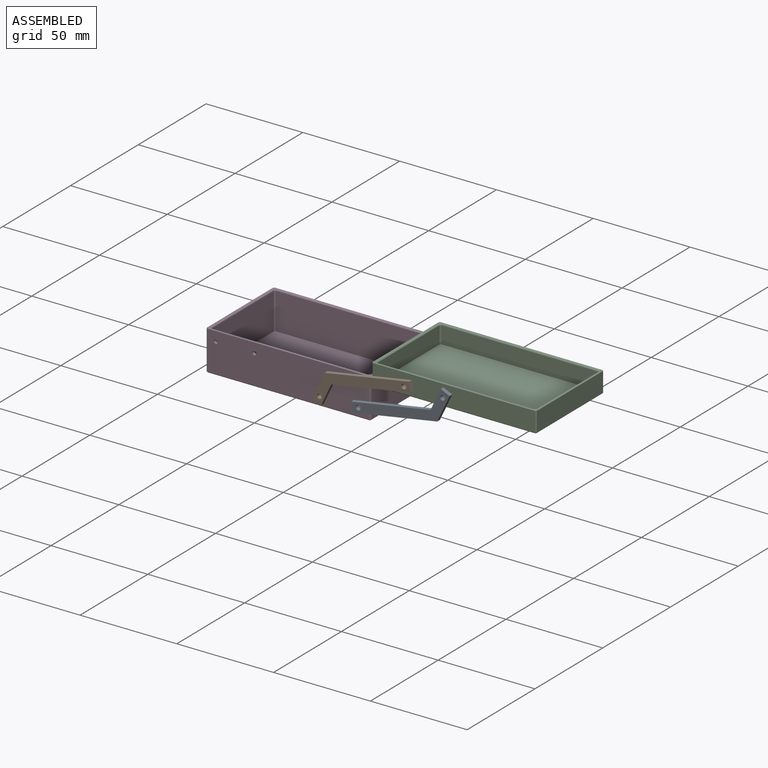
[diagram: assembled view]
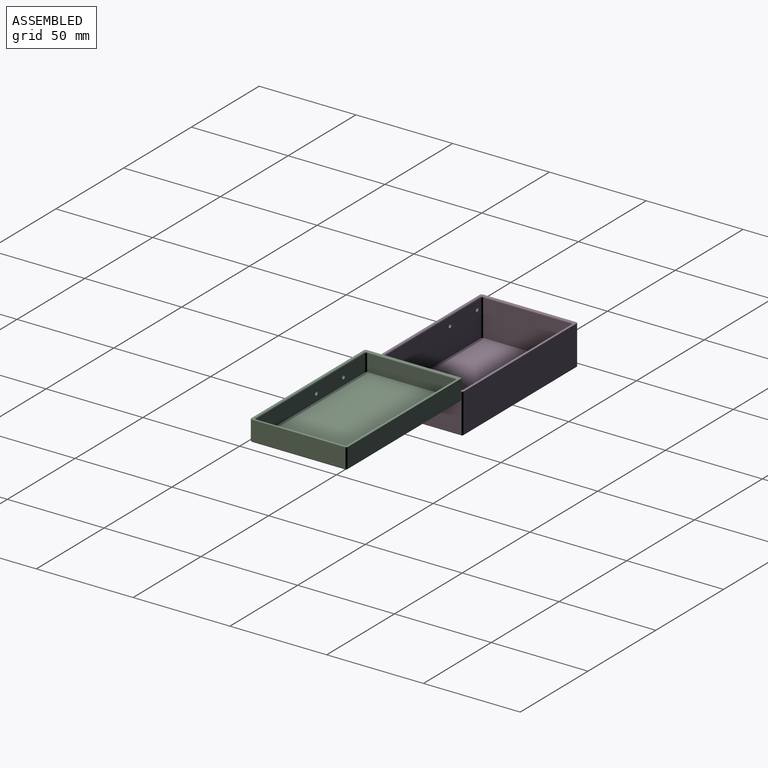
[diagram: assembled view, second angle]
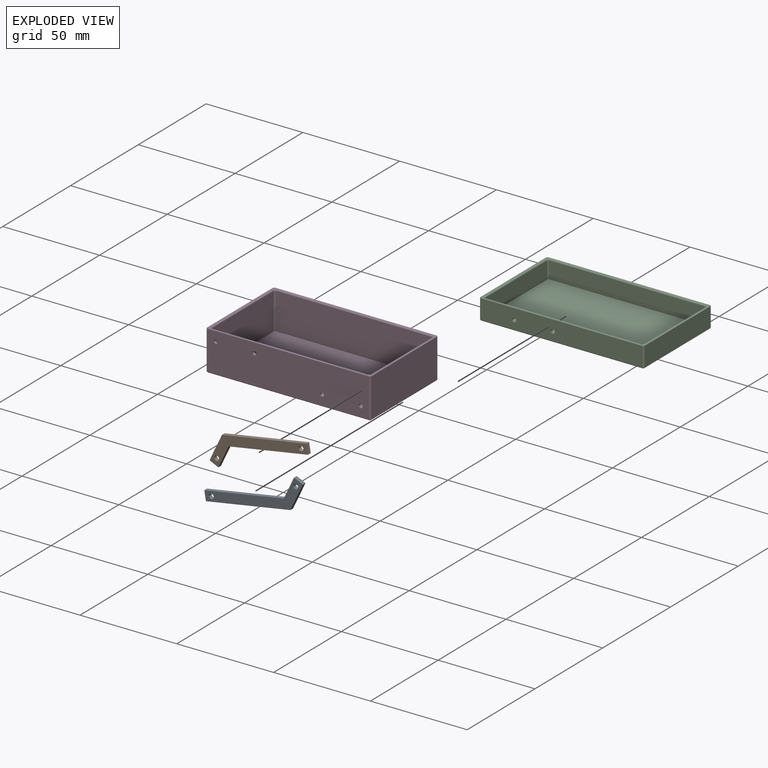
[diagram: exploded view]
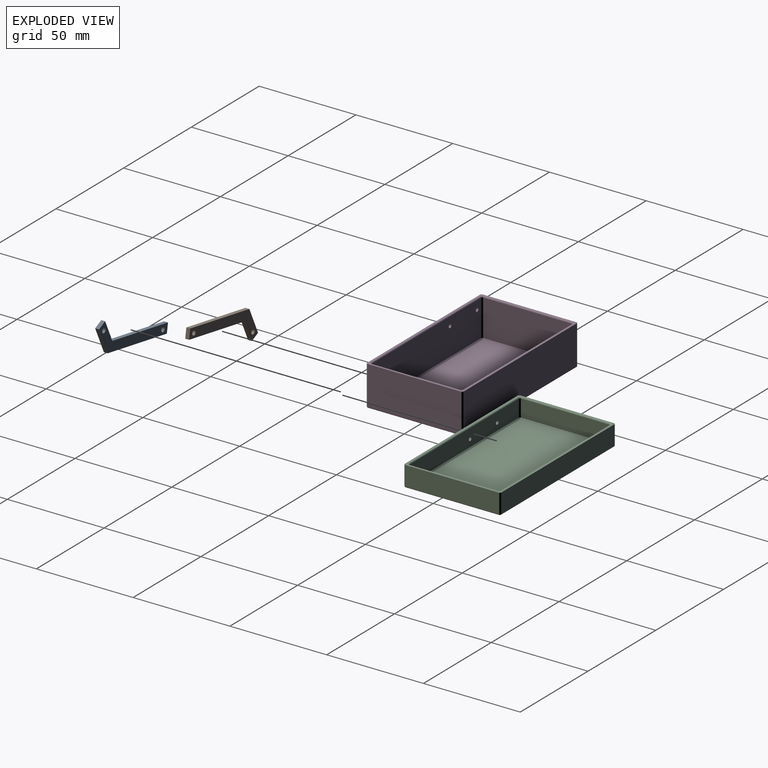
[diagram: exploded view, second angle]
ASSEMBLY  parts=4 mates=4
PART A: 10 faces, bbox 52.9x15.2x2 mm
  f0: plane 5x2mm, normal (-1,0,0), area 10mm2, adj f1,f7,f8,f9
  f1: plane 44.28x2mm, normal (0,-1,0), area 88.6mm2, adj f0,f2,f8,f9
  f2: plane 12.29x8.6mm, normal (0.82,-0.57,0), area 30mm2, adj f1,f3,f8,f9
  f3: plane 4.1x2.87mm, normal (0.57,0.82,0), area 10mm2, adj f2,f4,f8,f9
  f4: plane 10.16x7.11mm, normal (-0.82,0.57,0), area 24.8mm2, adj f3,f7,f8,f9
  f5: cylinder r=1.25mm len=2.5mm, axis (0,0,-1), area 15.7mm2, adj f8,f9
  f6: cylinder r=1.25mm len=2.5mm, axis (0,0,-1), area 15.7mm2, adj f8,f9
  f7: plane 41.68x2mm, normal (0,1,0), area 83.4mm2, adj f0,f4,f8,f9
  f8: plane 52.89x15.16mm, normal (0,0,1), area 273.6mm2, adj f0,f1,f2,f3,f4,f5,f6,f7
  f9: plane 52.89x15.16mm, normal (0,0,-1), area 273.6mm2, adj f0,f1,f2,f3,f4,f5,f6,f7
PART B: same geometry as A
PART C: 45 faces, bbox 85x50x10.6 mm
  f0: plane 83.8x10.2mm, normal (0,1,0), area 854.8mm2, adj f9,f12,f13,f28
  f1: plane 48.8x10.2mm, normal (-1,0,0), area 497.8mm2, adj f9,f11,f12,f29
  f2: plane 83.8x10.2mm, normal (0,-1,0), area 848.5mm2, adj f9,f11,f14,f33,f43,f44
  f3: plane 48.8x10.2mm, normal (1,0,0), area 497.8mm2, adj f9,f13,f14,f32
  f4: plane 84.2x49.2mm, normal (0,0,-1), area 4142.4mm2, adj f27,f28,f29,f30,f31,f32,f33,f34
  f5: plane 80.8x8.8mm, normal (0,-1,0), area 711mm2, adj f15,f17,f18,f40
  f6: plane 45.8x8.8mm, normal (-1,0,0), area 403mm2, adj f15,f19,f20,f41
  f7: plane 80.8x8.8mm, normal (0,1,0), area 704.8mm2, adj f20,f24,f26,f37,f43,f44
  f8: plane 45.8x8.8mm, normal (1,0,0), area 403mm2, adj f17,f23,f26,f36
  f9: plane 85x50mm, normal (0,0,1), area 240.9mm2, adj f0,f1,f2,f3,f11,f12,f13,f14
  f10: plane 80.8x45.8mm, normal (0,0,1), area 3700.6mm2, adj f18,f19,f23,f24
  f11: plane 10.2x0.6mm, normal (-0.71,-0.71,0), area 8.7mm2, adj f1,f2,f9,f31
  f12: plane 10.2x0.6mm, normal (-0.71,0.71,0), area 8.7mm2, adj f0,f1,f9,f27
  f13: plane 10.2x0.6mm, normal (0.71,0.71,0), area 8.7mm2, adj f0,f3,f9,f30
  f14: plane 10.2x0.6mm, normal (0.71,-0.71,0), area 8.7mm2, adj f2,f3,f9,f34
  f15: plane 8.8x0.6mm, normal (-0.71,-0.71,0), area 7.5mm2, adj f5,f6,f16,f42
  f16: plane 0.6x0.6mm, normal (-0.58,-0.58,0.58), area 0.3mm2, adj f15,f18,f19
  f17: plane 8.8x0.6mm, normal (0.71,-0.71,0), area 7.5mm2, adj f5,f8,f21,f38
  f18: plane 80.8x0.6mm, normal (0,-0.71,0.71), area 68.6mm2, adj f5,f10,f16,f21
  f19: plane 45.8x0.6mm, normal (-0.71,0,0.71), area 38.9mm2, adj f6,f10,f16,f22
  f20: plane 8.8x0.6mm, normal (-0.71,0.71,0), area 7.5mm2, adj f6,f7,f22,f39
  f21: plane 0.6x0.6mm, normal (0.58,-0.58,0.58), area 0.3mm2, adj f17,f18,f23
  f22: plane 0.6x0.6mm, normal (-0.58,0.58,0.58), area 0.3mm2, adj f19,f20,f24
  f23: plane 45.8x0.6mm, normal (0.71,0,0.71), area 38.9mm2, adj f8,f10,f21,f25
  f24: plane 80.8x0.6mm, normal (0,0.71,0.71), area 68.6mm2, adj f7,f10,f22,f25
  f25: plane 0.6x0.6mm, normal (0.58,0.58,0.58), area 0.3mm2, adj f23,f24,f26
  f26: plane 8.8x0.6mm, normal (0.71,0.71,0), area 7.5mm2, adj f7,f8,f25,f35
  f27: plane 0.77x0.77mm, normal (-0.5,0.5,-0.71), area 0.4mm2, adj f4,f12,f28,f29
  f28: plane 83.8x0.4mm, normal (0,0.71,-0.71), area 47.3mm2, adj f0,f4,f27,f30
  f29: plane 48.8x0.4mm, normal (-0.71,0,-0.71), area 27.5mm2, adj f1,f4,f27,f31
  f30: plane 0.77x0.77mm, normal (0.5,0.5,-0.71), area 0.4mm2, adj f4,f13,f28,f32
  f31: plane 0.77x0.77mm, normal (-0.5,-0.5,-0.71), area 0.4mm2, adj f4,f11,f29,f33
  f32: plane 48.8x0.4mm, normal (0.71,0,-0.71), area 27.5mm2, adj f3,f4,f30,f34
  f33: plane 83.8x0.4mm, normal (0,-0.71,-0.71), area 47.3mm2, adj f2,f4,f31,f34
  f34: plane 0.77x0.77mm, normal (0.5,-0.5,-0.71), area 0.4mm2, adj f4,f14,f32,f33
  f35: cylinder r=0.6mm len=1.38mm, axis (-0.71,0.71,0), area 1mm2, adj f9,f26,f36,f37
  f36: cylinder r=0.6mm len=46.3mm, axis (0,-1,0), area 43.3mm2, adj f8,f9,f35,f38
  f37: cylinder r=0.6mm len=81.3mm, axis (1,0,0), area 76.3mm2, adj f7,f9,f35,f39
  f38: cylinder r=0.6mm len=1.38mm, axis (0.71,0.71,0), area 1mm2, adj f9,f17,f36,f40
  f39: cylinder r=0.6mm len=1.38mm, axis (-0.71,-0.71,0), area 1mm2, adj f9,f20,f37,f41
  f40: cylinder r=0.6mm len=81.3mm, axis (-1,0,0), area 76.3mm2, adj f5,f9,f38,f42
  f41: cylinder r=0.6mm len=46.3mm, axis (0,1,0), area 43.3mm2, adj f6,f9,f39,f42
  f42: cylinder r=0.6mm len=1.38mm, axis (0.71,-0.71,0), area 1mm2, adj f9,f15,f40,f41
  f43: cylinder r=1mm len=2mm, axis (0,-1,0), area 9.4mm2, adj f2,f7
  f44: cylinder r=1mm len=2mm, axis (0,-1,0), area 9.4mm2, adj f2,f7
PART D: 47 faces, bbox 85x50x20.6 mm
  f0: plane 83.8x20.2mm, normal (0,1,0), area 1692.8mm2, adj f9,f12,f13,f28
  f1: plane 48.8x20.2mm, normal (-1,0,0), area 985.8mm2, adj f9,f11,f12,f29
  f2: plane 83.8x20.2mm, normal (0,-1,0), area 1680.2mm2, adj f9,f11,f14,f33,f43,f44,f45,f46
  f3: plane 48.8x20.2mm, normal (1,0,0), area 985.8mm2, adj f9,f13,f14,f32
  f4: plane 84.2x49.2mm, normal (0,0,-1), area 4142.4mm2, adj f27,f28,f29,f30,f31,f32,f33,f34
  f5: plane 80.8x18.8mm, normal (0,-1,0), area 1519mm2, adj f15,f17,f18,f40
  f6: plane 45.8x18.8mm, normal (-1,0,0), area 861mm2, adj f15,f19,f20,f41
  f7: plane 80.8x18.8mm, normal (0,1,0), area 1506.5mm2, adj f20,f24,f26,f37,f43,f44,f45,f46
  f8: plane 45.8x18.8mm, normal (1,0,0), area 861mm2, adj f17,f23,f26,f36
  f9: plane 85x50mm, normal (0,0,1), area 240.9mm2, adj f0,f1,f2,f3,f11,f12,f13,f14
  f10: plane 80.8x45.8mm, normal (0,0,1), area 3700.6mm2, adj f18,f19,f23,f24
  f11: plane 20.2x0.6mm, normal (-0.71,-0.71,0), area 17.1mm2, adj f1,f2,f9,f31
  f12: plane 20.2x0.6mm, normal (-0.71,0.71,0), area 17.1mm2, adj f0,f1,f9,f27
  f13: plane 20.2x0.6mm, normal (0.71,0.71,0), area 17.1mm2, adj f0,f3,f9,f30
  f14: plane 20.2x0.6mm, normal (0.71,-0.71,0), area 17.1mm2, adj f2,f3,f9,f34
  f15: plane 18.8x0.6mm, normal (-0.71,-0.71,0), area 16mm2, adj f5,f6,f16,f42
  f16: plane 0.6x0.6mm, normal (-0.58,-0.58,0.58), area 0.3mm2, adj f15,f18,f19
  f17: plane 18.8x0.6mm, normal (0.71,-0.71,0), area 16mm2, adj f5,f8,f21,f38
  f18: plane 80.8x0.6mm, normal (0,-0.71,0.71), area 68.6mm2, adj f5,f10,f16,f21
  f19: plane 45.8x0.6mm, normal (-0.71,0,0.71), area 38.9mm2, adj f6,f10,f16,f22
  f20: plane 18.8x0.6mm, normal (-0.71,0.71,0), area 16mm2, adj f6,f7,f22,f39
  f21: plane 0.6x0.6mm, normal (0.58,-0.58,0.58), area 0.3mm2, adj f17,f18,f23
  f22: plane 0.6x0.6mm, normal (-0.58,0.58,0.58), area 0.3mm2, adj f19,f20,f24
  f23: plane 45.8x0.6mm, normal (0.71,0,0.71), area 38.9mm2, adj f8,f10,f21,f25
  f24: plane 80.8x0.6mm, normal (0,0.71,0.71), area 68.6mm2, adj f7,f10,f22,f25
  f25: plane 0.6x0.6mm, normal (0.58,0.58,0.58), area 0.3mm2, adj f23,f24,f26
  f26: plane 18.8x0.6mm, normal (0.71,0.71,0), area 16mm2, adj f7,f8,f25,f35
  f27: plane 0.77x0.77mm, normal (-0.5,0.5,-0.71), area 0.4mm2, adj f4,f12,f28,f29
  f28: plane 83.8x0.4mm, normal (0,0.71,-0.71), area 47.3mm2, adj f0,f4,f27,f30
  f29: plane 48.8x0.4mm, normal (-0.71,0,-0.71), area 27.5mm2, adj f1,f4,f27,f31
  f30: plane 0.77x0.77mm, normal (0.5,0.5,-0.71), area 0.4mm2, adj f4,f13,f28,f32
  f31: plane 0.77x0.77mm, normal (-0.5,-0.5,-0.71), area 0.4mm2, adj f4,f11,f29,f33
  f32: plane 48.8x0.4mm, normal (0.71,0,-0.71), area 27.5mm2, adj f3,f4,f30,f34
  f33: plane 83.8x0.4mm, normal (0,-0.71,-0.71), area 47.3mm2, adj f2,f4,f31,f34
  f34: plane 0.77x0.77mm, normal (0.5,-0.5,-0.71), area 0.4mm2, adj f4,f14,f32,f33
  f35: cylinder r=0.6mm len=1.38mm, axis (-0.71,0.71,0), area 1mm2, adj f9,f26,f36,f37
  f36: cylinder r=0.6mm len=46.3mm, axis (0,-1,0), area 43.3mm2, adj f8,f9,f35,f38
  f37: cylinder r=0.6mm len=81.3mm, axis (1,0,0), area 76.3mm2, adj f7,f9,f35,f39
  f38: cylinder r=0.6mm len=1.38mm, axis (0.71,0.71,0), area 1mm2, adj f9,f17,f36,f40
  f39: cylinder r=0.6mm len=1.38mm, axis (-0.71,-0.71,0), area 1mm2, adj f9,f20,f37,f41
  f40: cylinder r=0.6mm len=81.3mm, axis (-1,0,0), area 76.3mm2, adj f5,f9,f38,f42
  f41: cylinder r=0.6mm len=46.3mm, axis (0,1,0), area 43.3mm2, adj f6,f9,f39,f42
  f42: cylinder r=0.6mm len=1.38mm, axis (0.71,-0.71,0), area 1mm2, adj f9,f15,f40,f41
  f43: cylinder r=1mm len=2mm, axis (0,-1,0), area 9.4mm2, adj f2,f7
  f44: cylinder r=1mm len=2mm, axis (0,-1,0), area 9.4mm2, adj f2,f7
  f45: cylinder r=1mm len=2mm, axis (0,-1,0), area 9.4mm2, adj f2,f7
  f46: cylinder r=1mm len=2mm, axis (0,-1,0), area 9.4mm2, adj f2,f7
PLACE A rot(axis=(0.99,-0.08,0.08),90.4deg) t=(34.72,-25,2.59)mm
PLACE B rot(axis=(0.06,0.71,-0.71),173.1deg) t=(63.89,-25,24.8)mm
PLACE C t=(85.61,0,16.79)mm
PLACE D at identity fixed
MATE revolute B.f5 <-> D.f45  axis (0,1,0) through (17.5,-25,5.6)mm
MATE revolute C.f43 <-> A.f5  axis (0,-1,0) through (81.11,-25,21.79)mm
MATE revolute B.f6 <-> C.f44  axis (0,1,0) through (61.11,-25,21.79)mm
MATE revolute A.f6 <-> D.f44  axis (0,1,0) through (37.5,-25,5.6)mm
